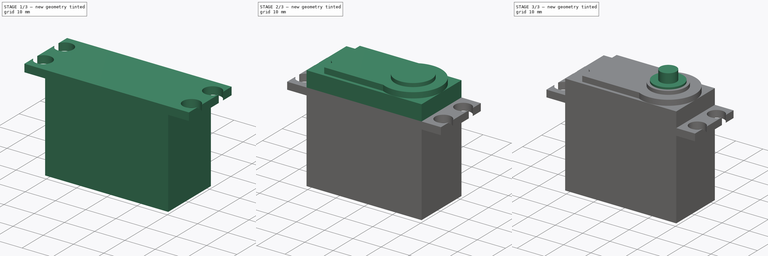
[diagram: build sequence overview — one tinted view per stage of 3, left to right]
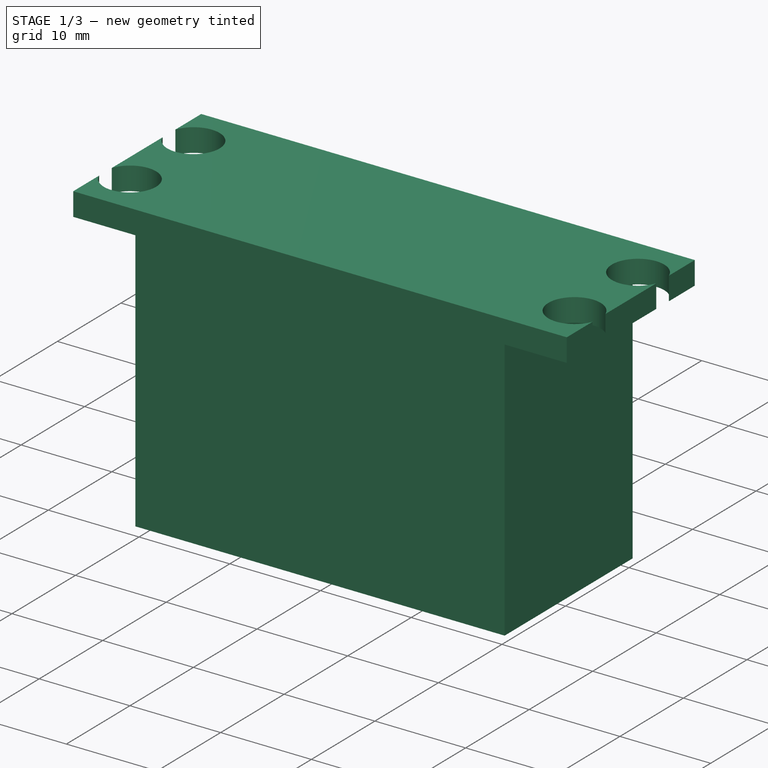
[diagram: stage 1 of 3 — iso view after this stage's code; geometry added in this stage tinted green]
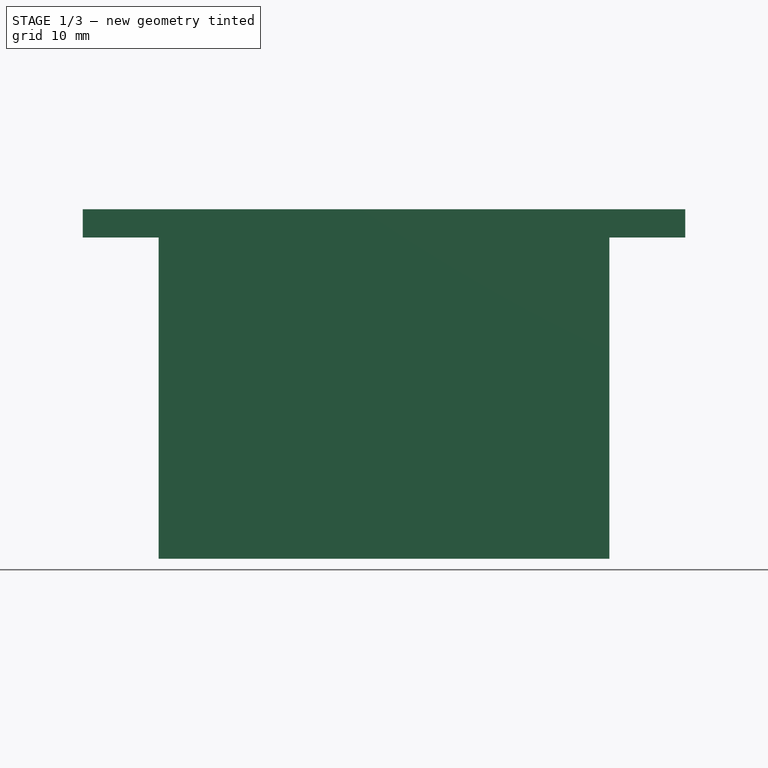
[diagram: stage 1 of 3 — front view after this stage's code; geometry added in this stage tinted green]
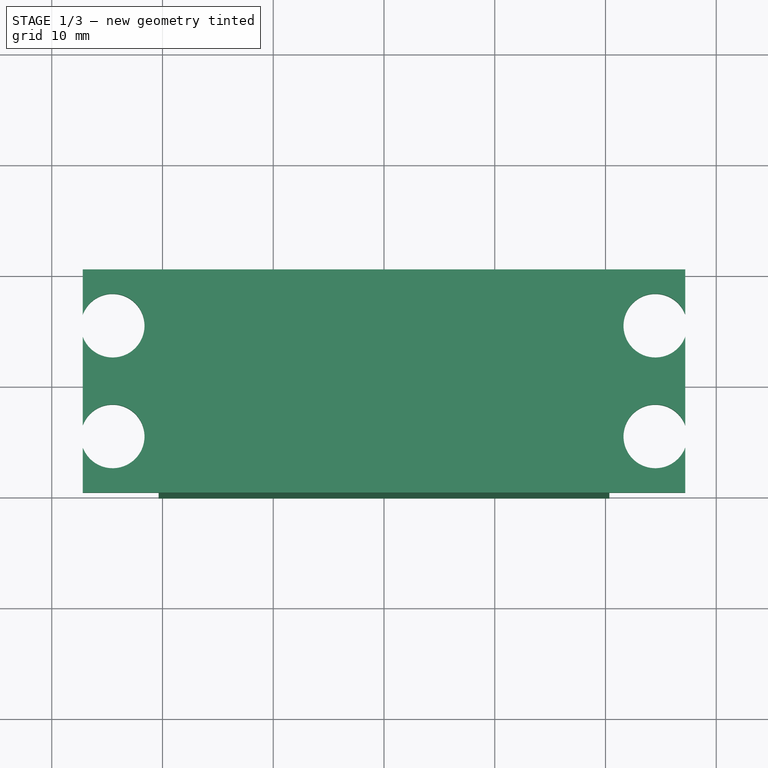
[diagram: stage 1 of 3 — top view after this stage's code; geometry added in this stage tinted green]
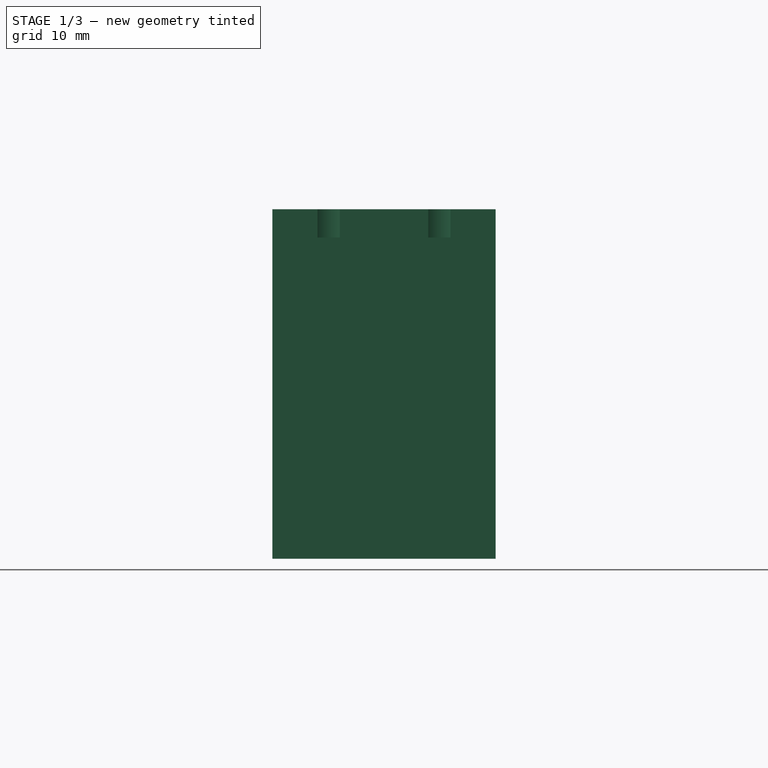
[diagram: stage 1 of 3 — right view after this stage's code; geometry added in this stage tinted green]
FCSTD DOCUMENT  (FreeCAD 0.18.4R)
Label: mg996
License: All rights reserved
LicenseURL: http://en.wikipedia.org/wiki/All_rights_reserved
objects: Sketcher::SketchObject×7, PartDesign::Pad×7, PartDesign::Body×1
note: 22 computed .brp shape members not serialized (recipe doc carries the construction recipe); baked Part::Feature solids carry a one-line shape summary decoded from their .brp

FEATURE [Sketcher::SketchObject] Sketch
  MapMode = 5
  Support = -> [XY_Plane]
  sketch-geometry (4):
    g0: LineSegment StartX=-20.35 StartY=10.075 StartZ=0 EndX=20.35 EndY=10.075 EndZ=0
    g1: LineSegment StartX=20.35 StartY=10.075 StartZ=0 EndX=20.35 EndY=-10.075 EndZ=0
    g2: LineSegment StartX=20.35 StartY=-10.075 StartZ=0 EndX=-20.35 EndY=-10.075 EndZ=0
    g3: LineSegment StartX=-20.35 StartY=-10.075 StartZ=0 EndX=-20.35 EndY=10.075 EndZ=0
  constraints (11):
    c: Coincident(g0,g1)
    c: Coincident(g1,g2)
    c: Coincident(g2,g3)
    c: Coincident(g3,g0)
    c: Horizontal(g0)
    c: Horizontal(g2)
    c: Vertical(g1)
    c: Vertical(g3)
    c: Symmetric(g0,g1,g-1)
    c: DistanceX(g0,g0) = 40.7
    c: DistanceY(g3,g3) = 20.15
FEATURE [PartDesign::Pad] Pad
  Length = 29
  Length2 = 100
  Profile = -> Sketch
  Reversed = true
  Type = 0
FEATURE [Sketcher::SketchObject] Sketch001
  MapMode = 5
  Support = -> [Pad]
  sketch-geometry (16):
    g0: LineSegment StartX=-27.2 StartY=10.075 StartZ=0 EndX=27.2 EndY=10.075 EndZ=0
    g1: LineSegment StartX=27.2 StartY=10.075 StartZ=0 EndX=27.2 EndY=6 EndZ=0
    g2: LineSegment StartX=-27.2 StartY=10.075 StartZ=0 EndX=-27.2 EndY=6 EndZ=0
    g3: LineSegment StartX=-27.2 StartY=4 StartZ=0 EndX=-27.2 EndY=-4 EndZ=0
    g4: LineSegment StartX=27.2 StartY=4 StartZ=0 EndX=27.2 EndY=-4 EndZ=0
    g5: LineSegment StartX=27.2 StartY=-6 StartZ=0 EndX=27.2 EndY=-10.075 EndZ=0
    g6: LineSegment StartX=27.2 StartY=-10.075 StartZ=0 EndX=-27.2 EndY=-10.075 EndZ=0
    g7: LineSegment StartX=-27.2 StartY=-10.075 StartZ=0 EndX=-27.2 EndY=-6 EndZ=0
    g8: ArcOfCircle CenterX=-24.5 CenterY=5 CenterZ=0 NormalX=0 NormalY=0 NormalZ=1 AngleXU=0 Radius=2.87924 StartAngle=3.4963 EndAngle=9.07007
    g9: ArcOfCircle CenterX=-24.5 CenterY=-5 CenterZ=0 NormalX=0 NormalY=0 NormalZ=1 AngleXU=0 Radius=2.87924 StartAngle=3.4963 EndAngle=9.07007
    g10: ArcOfCircle CenterX=24.5 CenterY=5 CenterZ=0 NormalX=0 NormalY=0 NormalZ=1 AngleXU=0 Radius=2.87924 StartAngle=0.354706 EndAngle=5.92848
    g11: ArcOfCircle CenterX=24.5 CenterY=-5 CenterZ=0 NormalX=0 NormalY=0 NormalZ=1 AngleXU=0 Radius=2.87924 StartAngle=0.354706 EndAngle=5.92848
    g12: LineSegment [constr] StartX=-24.5 StartY=5 StartZ=0 EndX=24.5 EndY=5 EndZ=0
    g13: LineSegment [constr] StartX=24.5 StartY=5 StartZ=0 EndX=24.5 EndY=-5 EndZ=0
    g14: LineSegment [constr] StartX=24.5 StartY=-5 StartZ=0 EndX=-24.5 EndY=-5 EndZ=0
    g15: LineSegment [constr] StartX=-24.5 StartY=-5 StartZ=0 EndX=-24.5 EndY=5 EndZ=0
  constraints (46):
    c: Coincident(g0,g1)
    c: Coincident(g5,g6)
    c: Coincident(g6,g7)
    c: Horizontal(g0)
    c: Horizontal(g6)
    c: Vertical(g4)
    c: Vertical(g1)
    c: Vertical(g5)
    c: Vertical(g7)
    c: Vertical(g3)
    c: Vertical(g2)
    c: Vertical(g7,g3)
    c: Vertical(g3,g2)
    c: Coincident(g2,g0)
    c: Vertical(g1,g4)
    c: Vertical(g4,g5)
    c: DistanceX(g0,g0) = 54.4
    c: Coincident(g10,g1)
    c: Coincident(g10,g4)
    c: Coincident(g11,g4)
    c: Coincident(g11,g5)
    c: Coincident(g9,g7)
    c: Coincident(g9,g3)
    c: Coincident(g8,g3)
    c: Coincident(g8,g2)
    c: Symmetric(g0,g5,g-1)
    c: DistanceY(g6,g0) = 20.15
    c: Equal(g9,g8)
    c: Equal(g8,g10)
    c: Equal(g10,g11)
    c: Coincident(g12,g13)
    c: Coincident(g13,g14)
    c: Coincident(g14,g15)
    c: Coincident(g15,g12)
    c: Horizontal(g12)
    c: Horizontal(g14)
    c: Vertical(g13)
    c: Vertical(g15)
    c: Symmetric(g12,g13,g-1)
    c: DistanceX(g12,g12) = 49
    c: Coincident(g8,g12)
    c: Coincident(g9,g14)
    c: Coincident(g11,g13)
    c: Coincident(g10,g12)
    c: DistanceY(g15,g15) = 10
    c: DistanceY(g3,g2) = 2
FEATURE [PartDesign::Pad] Pad001
  BaseFeature = -> Pad
  Length = 2.55
  Length2 = 100
  Profile = -> Sketch001
  Type = 0
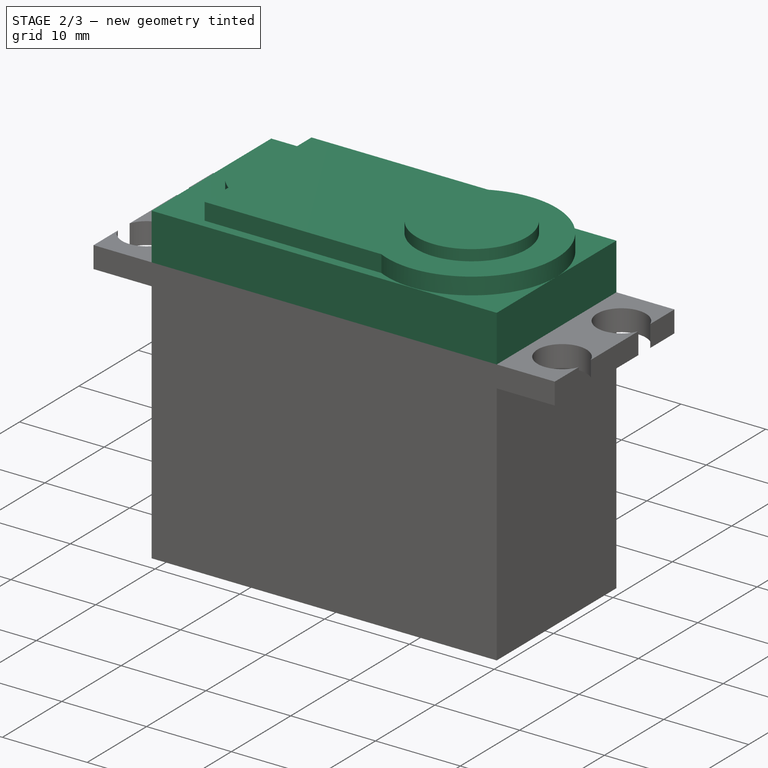
[diagram: stage 2 of 3 — iso view after this stage's code; geometry added in this stage tinted green]
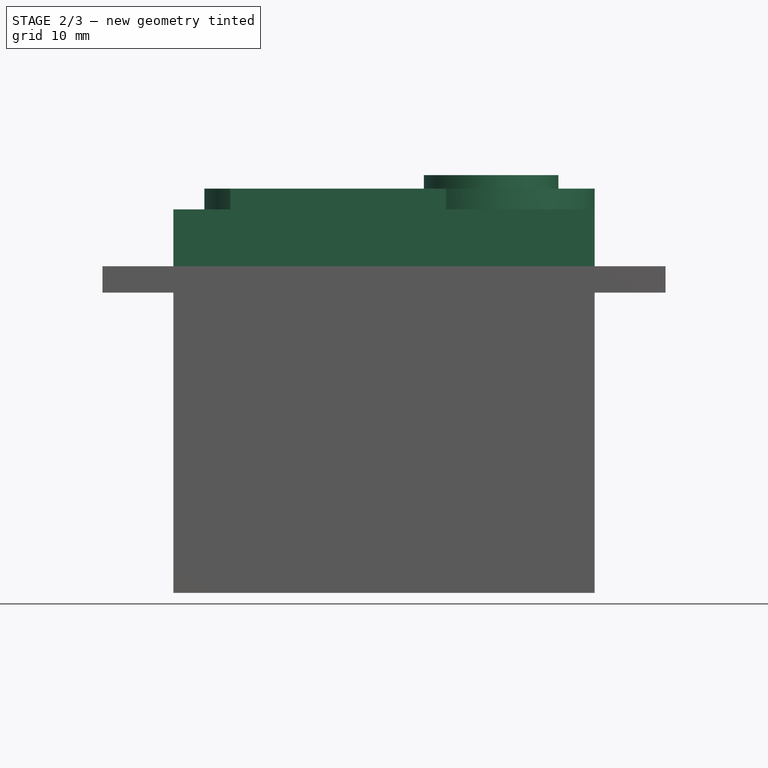
[diagram: stage 2 of 3 — front view after this stage's code; geometry added in this stage tinted green]
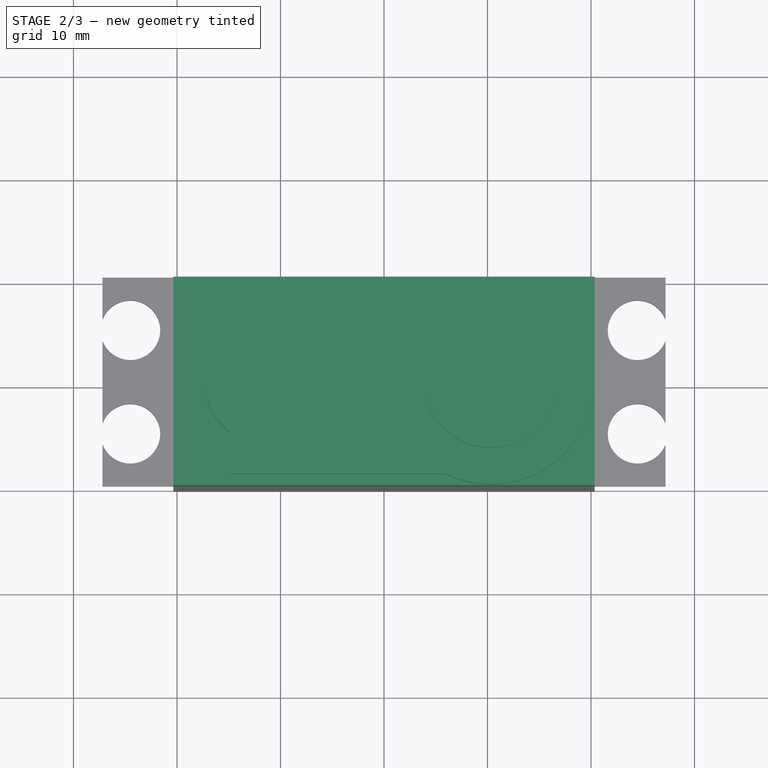
[diagram: stage 2 of 3 — top view after this stage's code; geometry added in this stage tinted green]
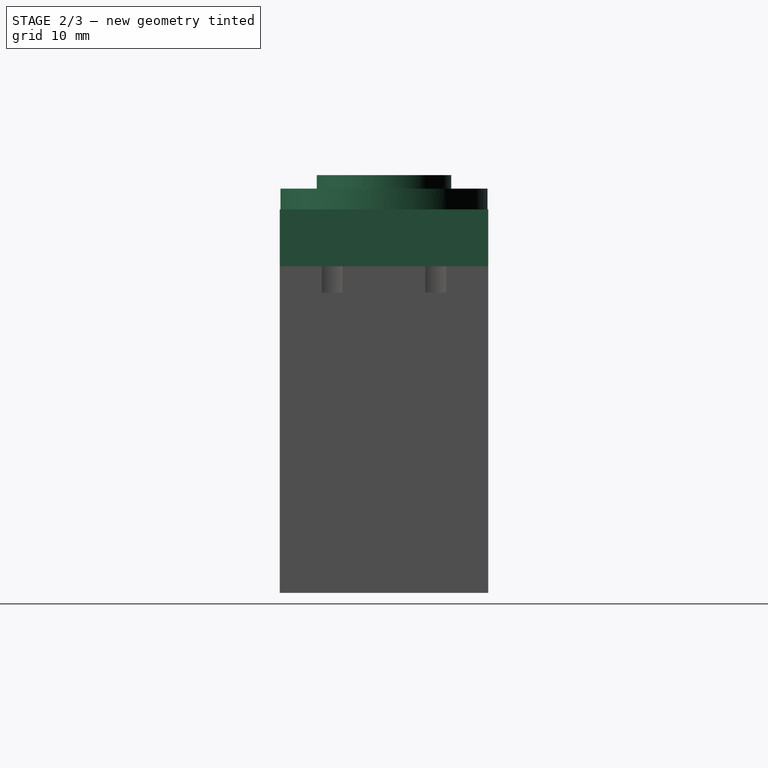
[diagram: stage 2 of 3 — right view after this stage's code; geometry added in this stage tinted green]
FEATURE [Sketcher::SketchObject] Sketch002
  MapMode = 5
  Placement = pos=(0,0,2.55) rot=(0,0,1;0rad)
  Support = -> [Pad001]
  sketch-geometry (4):
    g0: LineSegment StartX=-20.35 StartY=10.075 StartZ=0 EndX=20.35 EndY=10.075 EndZ=0
    g1: LineSegment StartX=20.35 StartY=10.075 StartZ=0 EndX=20.35 EndY=-10.075 EndZ=0
    g2: LineSegment StartX=20.35 StartY=-10.075 StartZ=0 EndX=-20.35 EndY=-10.075 EndZ=0
    g3: LineSegment StartX=-20.35 StartY=-10.075 StartZ=0 EndX=-20.35 EndY=10.075 EndZ=0
  constraints (11):
    c: Coincident(g0,g1)
    c: Coincident(g1,g2)
    c: Coincident(g2,g3)
    c: Coincident(g3,g0)
    c: Horizontal(g0)
    c: Horizontal(g2)
    c: Vertical(g1)
    c: Vertical(g3)
    c: Symmetric(g1,g0,g-1)
    c: DistanceX(g0,g0) = 40.7
    c: DistanceY(g3,g3) = 20.15
FEATURE [PartDesign::Pad] Pad002
  BaseFeature = -> Pad001
  Length = 5.5
  Length2 = 100
  Profile = -> Sketch002
  Type = 0
FEATURE [Sketcher::SketchObject] Sketch003
  MapMode = 5
  Placement = pos=(0,0,8.05) rot=(0,0,1;0rad)
  Support = -> [Pad002]
  sketch-geometry (7):
    g0: ArcOfCircle CenterX=10.35 CenterY=0 CenterZ=0 NormalX=0 NormalY=0 NormalZ=1 AngleXU=0 Radius=10 StartAngle=4.26136 EndAngle=8.30501
    g1: LineSegment StartX=5.9911 StartY=9 StartZ=0 EndX=-14.85 EndY=9 EndZ=0
    g2: LineSegment StartX=-14.85 StartY=9 StartZ=0 EndX=-14.85 EndY=5 EndZ=0
    g3: LineSegment StartX=-14.85 StartY=-5 StartZ=0 EndX=-14.85 EndY=-9 EndZ=0
    g4: LineSegment StartX=-14.85 StartY=-9 StartZ=0 EndX=5.9911 EndY=-9 EndZ=0
    g5: ArcOfCircle CenterX=-11.1 CenterY=0 CenterZ=0 NormalX=0 NormalY=0 NormalZ=1 AngleXU=0 Radius=6.25 StartAngle=3.14159 EndAngle=4.06889
    g6: ArcOfCircle CenterX=-11.1 CenterY=0 CenterZ=0 NormalX=0 NormalY=0 NormalZ=1 AngleXU=0 Radius=6.25 StartAngle=2.2143 EndAngle=3.14159
  constraints (23):
    c: PointOnObject(g0,g-1)
    c: Diameter(g0) = 20
    c: DistanceX(g-1,g0) = 10.35
    c: Coincident(g1,g2)
    c: Coincident(g3,g4)
    c: Coincident(g1,g0)
    c: Coincident(g4,g0)
    c: Horizontal(g4)
    c: Horizontal(g1)
    c: Vertical(g2)
    c: Vertical(g3)
    c: DistanceX(g3,g-1) = 14.85
    c: Equal(g1,g4)
    c: Vertical(g3,g2)
    c: DistanceY(g3,g1) = 18
    c: Coincident(g6,g2)
    c: Coincident(g5,g3)
    c: Coincident(g6,g5)
    c: Tangent(g6,g5) = -1.5708
    c: PointOnObject(g5,g-1)
    c: PointOnObject(g5,g-1)
    c: DistanceX(g5,g-1) = 17.35
    c: DistanceY(g3,g2) = 10
FEATURE [PartDesign::Pad] Pad003
  BaseFeature = -> Pad002
  Length = 2
  Length2 = 100
  Profile = -> Sketch003
  Type = 0
FEATURE [Sketcher::SketchObject] Sketch004
  MapMode = 5
  Placement = pos=(0,0,10.05) rot=(0,0,1;0rad)
  Support = -> [Pad003]
  sketch-geometry (1):
    g0: Circle CenterX=10.35 CenterY=0 CenterZ=0 NormalX=0 NormalY=0 NormalZ=1 AngleXU=0 Radius=6.5
  constraints (3):
    c: PointOnObject(g0,g-1)
    c: DistanceX(g-1,g0) = 10.35
    c: Diameter(g0) = 13
FEATURE [PartDesign::Pad] Pad004
  BaseFeature = -> Pad003
  Length = 1.3
  Length2 = 100
  Profile = -> Sketch004
  Type = 0
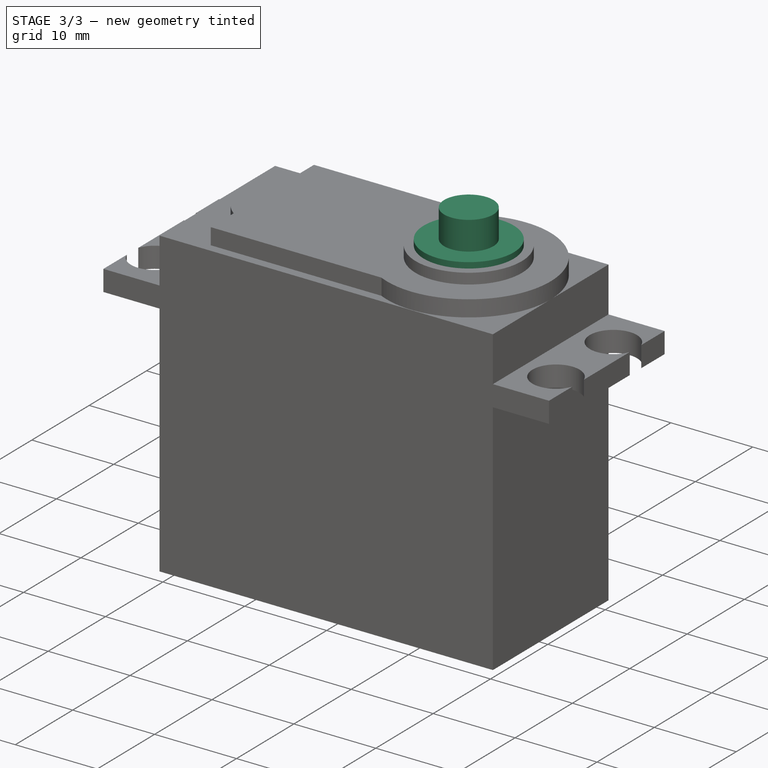
[diagram: stage 3 of 3 — iso view after this stage's code; geometry added in this stage tinted green]
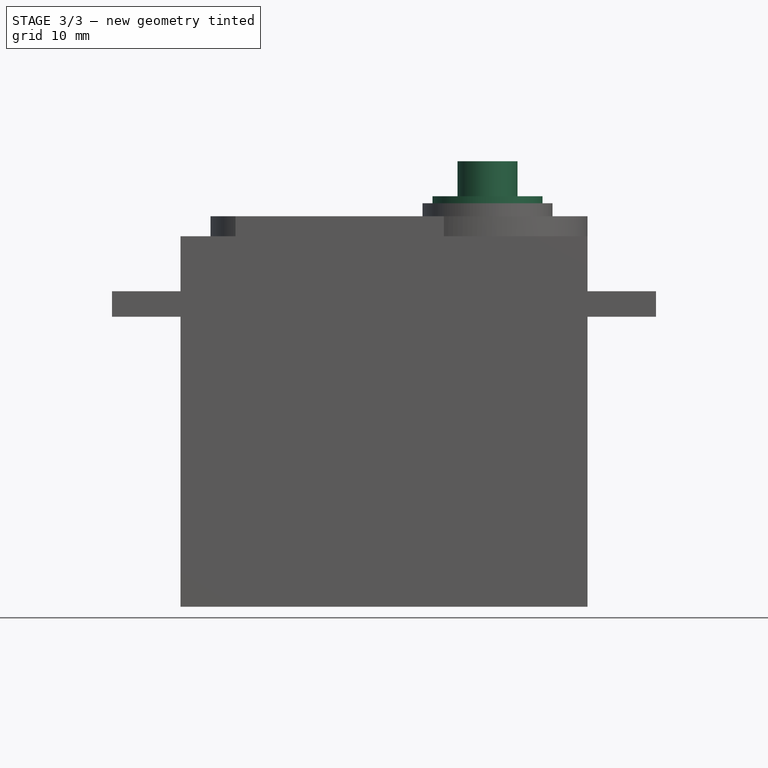
[diagram: stage 3 of 3 — front view after this stage's code; geometry added in this stage tinted green]
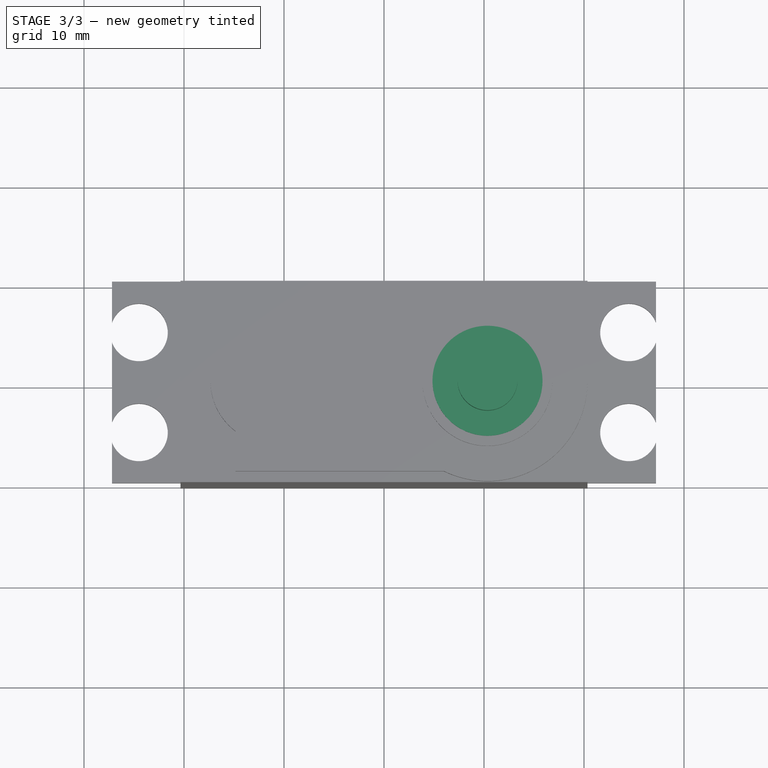
[diagram: stage 3 of 3 — top view after this stage's code; geometry added in this stage tinted green]
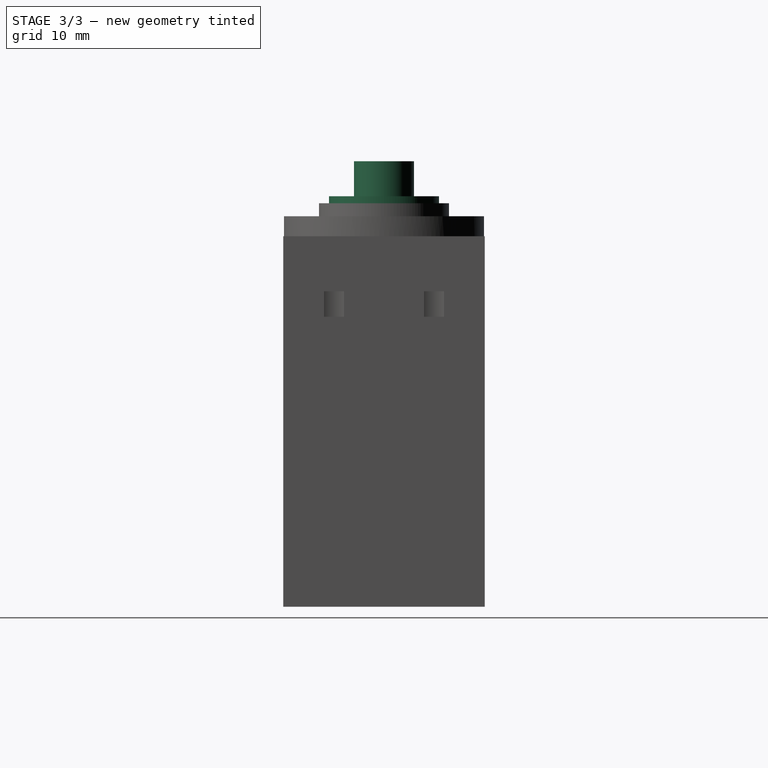
[diagram: stage 3 of 3 — right view after this stage's code; geometry added in this stage tinted green]
FEATURE [Sketcher::SketchObject] Sketch005
  MapMode = 5
  Placement = pos=(0,0,11.35) rot=(0,0,1;0rad)
  Support = -> [Pad004]
  sketch-geometry (1):
    g0: Circle CenterX=10.35 CenterY=0 CenterZ=0 NormalX=0 NormalY=0 NormalZ=1 AngleXU=0 Radius=5.5
  constraints (3):
    c: PointOnObject(g0,g-1)
    c: Diameter(g0) = 11
    c: DistanceX(g-1,g0) = 10.35
FEATURE [PartDesign::Pad] Pad005
  BaseFeature = -> Pad004
  Length = 0.7
  Length2 = 100
  Profile = -> Sketch005
  Type = 0
FEATURE [Sketcher::SketchObject] Sketch006
  MapMode = 5
  Placement = pos=(0,0,12.05) rot=(0,0,1;0rad)
  Support = -> [Pad005]
  sketch-geometry (1):
    g0: Circle CenterX=10.35 CenterY=0 CenterZ=0 NormalX=0 NormalY=0 NormalZ=1 AngleXU=0 Radius=3
  constraints (3):
    c: PointOnObject(g0,g-1)
    c: DistanceX(g-1,g0) = 10.35
    c: Diameter(g0) = 6
FEATURE [PartDesign::Pad] Pad006
  BaseFeature = -> Pad005
  Length = 3.5
  Length2 = 100
  Profile = -> Sketch006
  Type = 0
FEATURE [PartDesign::Body] Body
  Group = -> [Sketch,Pad,Sketch001,Pad001,Sketch002,Pad002,Sketch003,Pad003,Sketch004,Pad004,Sketch005,Pad005,Sketch006,Pad006]
  Origin = -> Origin
  Tip = -> Pad006
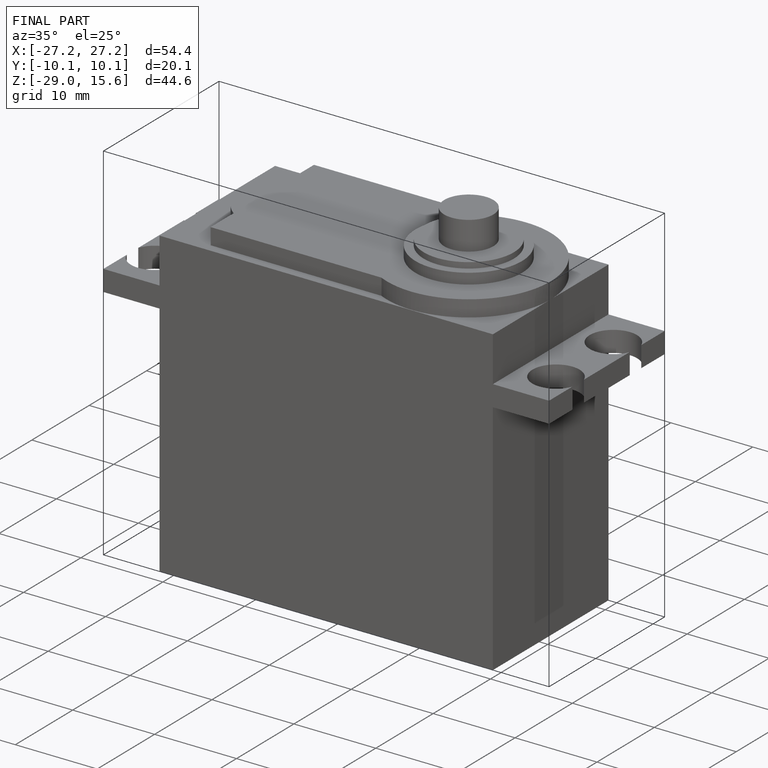
[diagram: finished part — iso view with bounding-box wireframe]
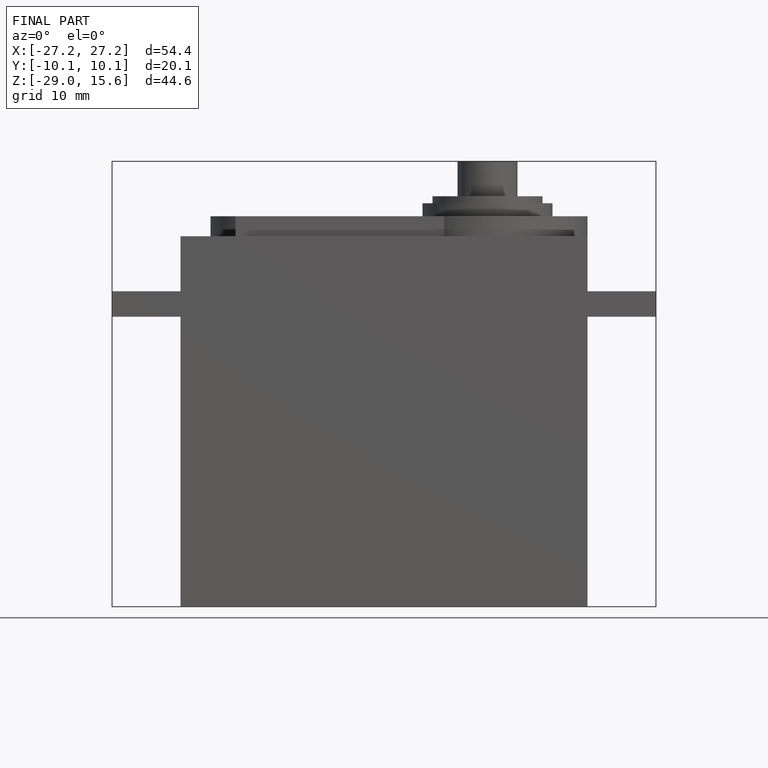
[diagram: finished part — front view with bounding-box wireframe]
